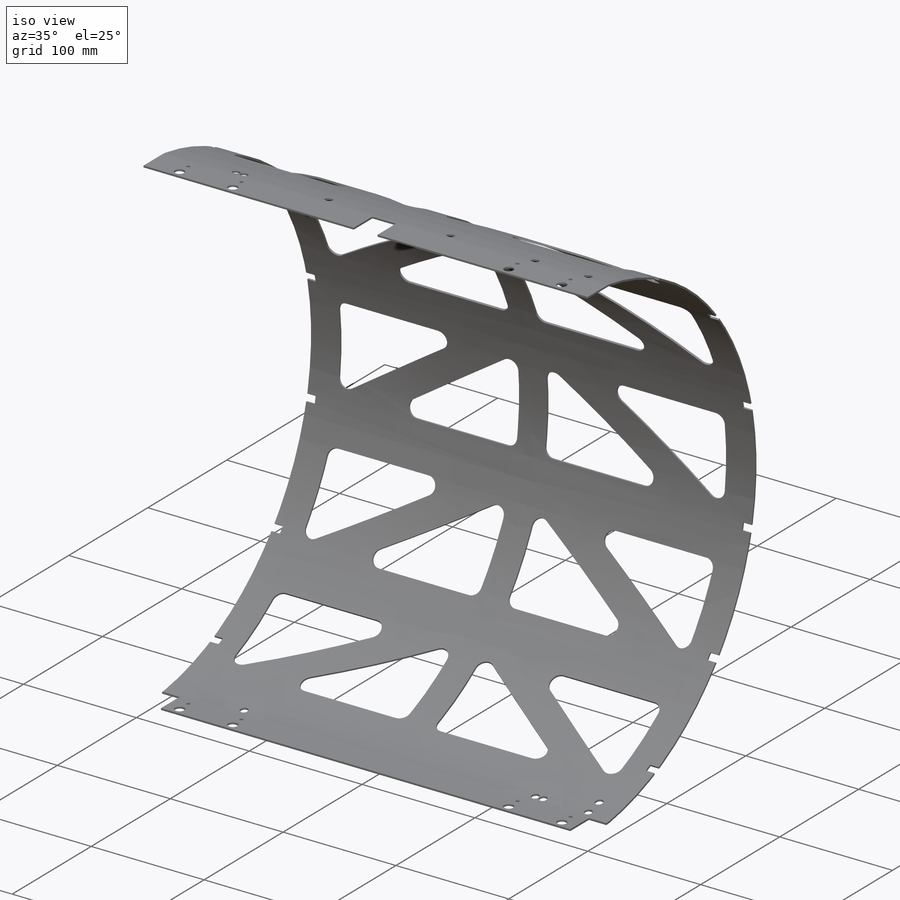
[diagram: iso view]
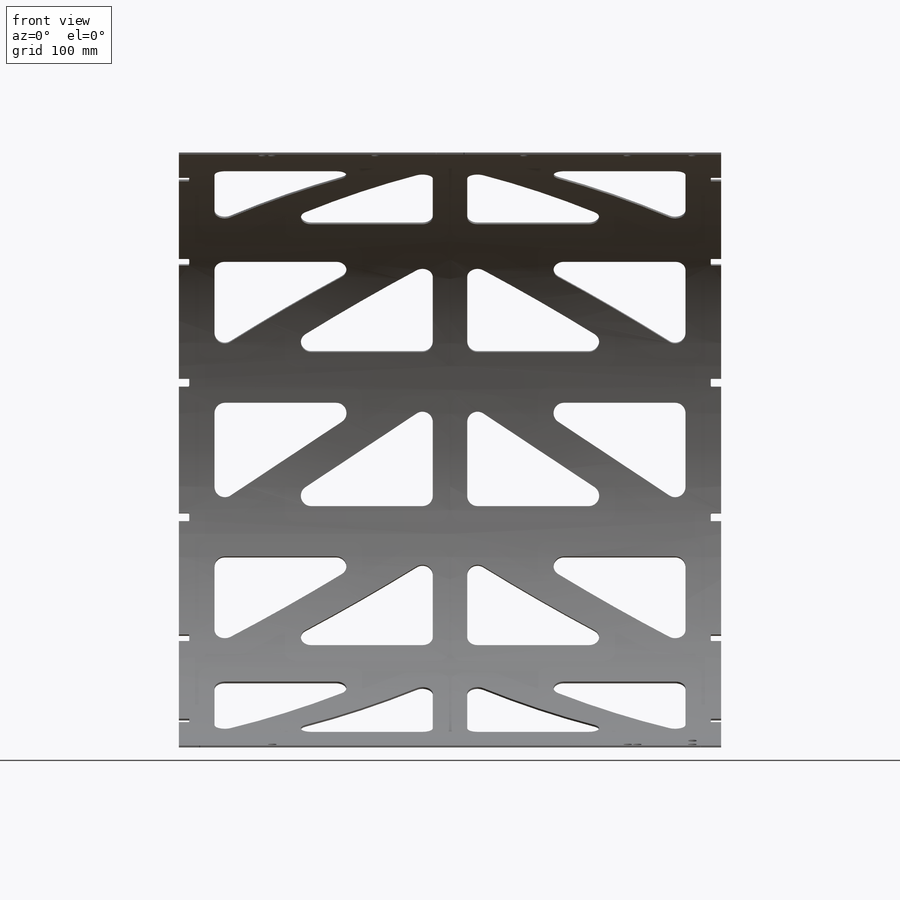
[diagram: front view]
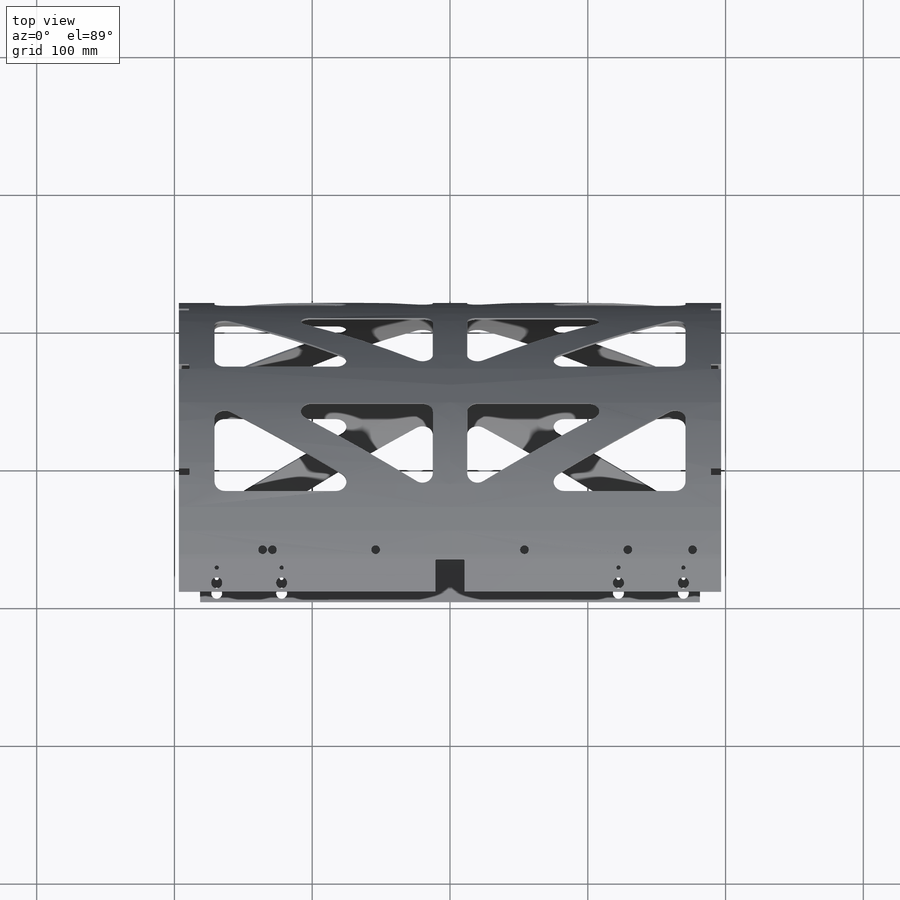
[diagram: top view]
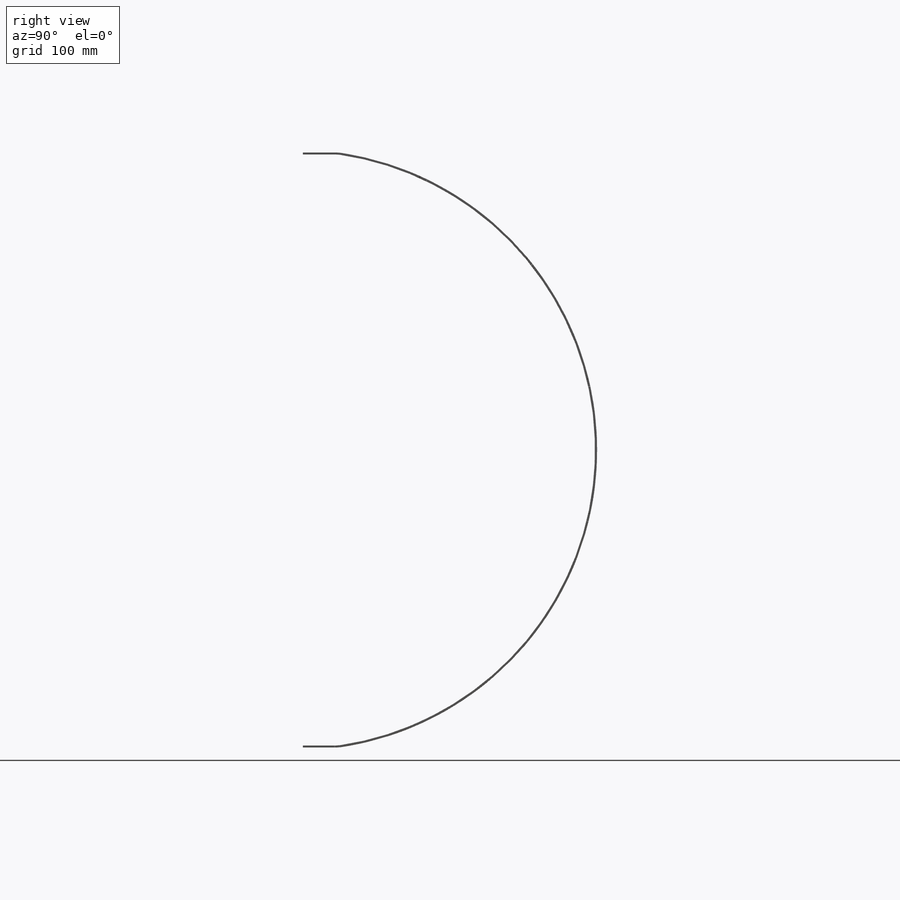
[diagram: right view]
SOLIDWORKS PART (.sldprt)
format: sldprt  version: not decoded by parser v0  size: 1,179,648 bytes
history: native  units: mm
features: sketch x11, cut_extrude x10, plane x7, mirror x3, pattern_circular x2, fillet x2, material x1 + 2 further entries (+12 scaffold rows collapsed)
feature tree (50):
  scaffold x12  (default folders/planes/origin — collapsed)
  material  "Material <not specified>"
  plane  "Plane1"
  plane  "Plane2"
  plane  "Plane3"
  "Axis2"
  "Axis3"
  sketch  "Sketch1"  dims[c1.D2=218.063mm c1.D4=20.0mm c1.D1=~37.856891mm c2.D1=~88.760621deg c3.D1=~29.232494mm c3.D3=~466.432306mm c4.D1=~215.955424mm c4.D3=4.5mm c5.D1=393.604mm c5.D5=1.5mm c5.D6=1.0mm c5.D7=5.0mm]
  plane  "Plane4"
  sketch  "Sketch2"  dims[c1.D4=7.5mm c1.D5=7.5mm c1.D1=~271.769378mm c1.D2=~66.951289mm c1.D3=250.0mm c2.D2=85.0mm c2.D1=30.0mm c3.D2=75.0mm c3.D3=25.0mm c3.D4=12.5mm c3.D1=25.874mm]
  cut_extrude  "Cut-Extrude1"  [1 undecoded]
  mirror  "Mirror1"
  pattern_circular  "CirPattern1"  Count=5 Angle=30deg
  plane  "Plane5"  Offset=193.67125mm
  sketch  "Sketch24"  dims[c1.D1=20.0mm c1.D2=230.0mm c1.D3=40.0mm c1.D4=~477.344157mm c2.D4=11.0deg c2.D2=230.0mm c2.D1=40.0mm c3.D1=5.0deg c4.D1=40.0mm c5.D1=~6.49219deg c6.D1=21.0mm c6.D4=17.0mm c7.D1=11.0mm]
  cut_extrude  "Cut-Extrude2"  Depth=12.31625mm
  mirror  "Mirror8"
  plane  "barrel 1-2 mounting plane"  Offset=122.237632mm
  plane  "barrel 3 mounting plane"  Offset=169.355mm
  sketch  "Sketch25"  dims[c1.D1=20.0mm c1.D2=40.0mm c1.D3=230.0mm c2.D1=~39.610723mm c3.D1=~6.49219deg c4.D1=477.4mm c5.D1=~6.49219deg c6.D1=21.0mm c6.D4=17.0mm c7.D1=11.0mm]
  cut_extrude  "Cut-Extrude3"  Depth=21mm
  sketch  "Sketch29"  dims[c1.D2=2.8448mm c1.D6=0.5mm c1.D1=14.063mm c2.D1=2.5deg c3.D1=14.063mm c4.D1=2.5deg c4.D3=209.0mm c5.D1=406.8669mm c6.D1=25.0deg c6.D2=11.5mm c6.D3=6.0mm c6.D4=2.5mm c6.D5=220.0mm]
  cut_extrude  "Extrude2"  Depth=7.5mm
  fillet  "Fillet1"  Radius=0.5mm
  pattern_circular  "CirPattern3"  Count=6 Angle=130deg
  mirror  "Mirror10"
  sketch  "Sketch33"  dims[c1.D1=8.0mm c1.D3=2.9464mm c1.D4=3.0mm c1.D2=11.0mm c2.D3=11.0mm]
  cut_extrude  "screw holes"  [1 undecoded]
  fillet  "Fillet2"  Radius=1mm
  sketch  "Sketch35"  dims[c1.D2=~14.746445mm c1.D3=~14.746445mm c1.D4=~14.746445mm c1.D5=6.25mm c1.D1=35.0mm c2.D2=7.0mm c2.D3=7.0mm c2.D4=125.0559mm c2.D1=129.0mm c3.D4=35.0mm c3.D6=176.0mm]
  cut_extrude  "Extrude4"  [1 undecoded]
  sketch  "Sketch40"  dims[D1=~48.716075mm]
  cut_extrude  "Extrude7"  [1 undecoded]
  sketch  "Sketch36"
  cut_extrude  "Extrude5"  [1 undecoded]
  sketch  "Sketch37"
  cut_extrude  "Extrude6"  [1 undecoded]
  sketch  "Sketch38"  dims[c1.D1=~87.902251mm c2.D1=30.0deg c2.D2=4.5085mm c2.D3=6.4685mm c2.D4=57.15mm]
  cut_extrude  "Cut-Extrude4"  [1 undecoded]
decode coverage: 16 of 28 modeling features carry decoded parameters; 2 rows unclassified (native names shown)
note: ~ marks probable driven/reference dimensions
note: 7 parameter values undecoded
summary: no parameter record found for 7 features
note: suppression state not decoded; provenance and decode notes live in map.json
